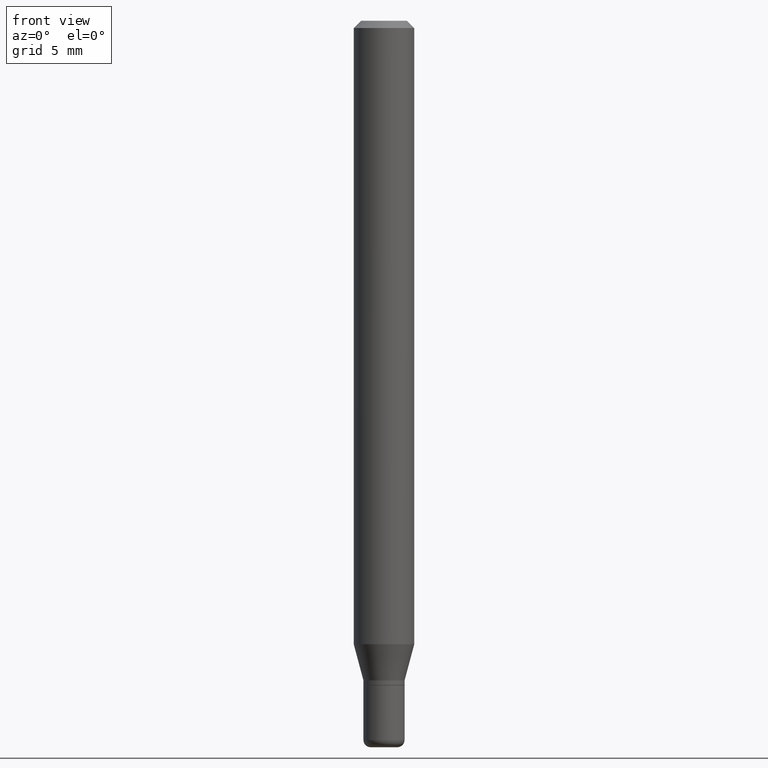
[diagram: clean part render]
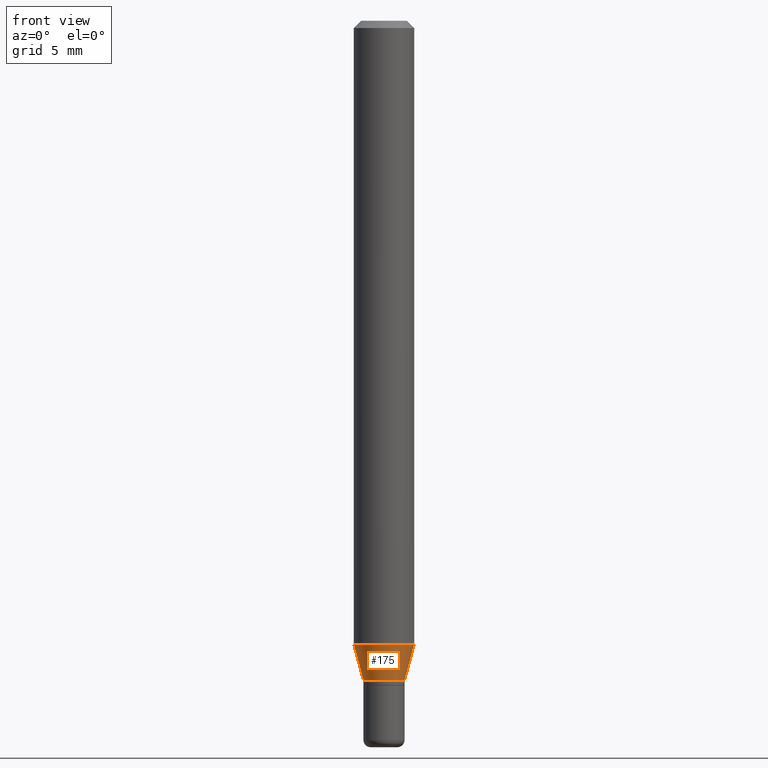
[diagram: same view with one face highlighted and labeled with its STEP entity id]
A machine part, front view. The second image highlights one B-rep face of the part: STEP entity #175.
In plain terms, the highlighted conical surface has half-angle 15 deg.
Its self-contained STEP definition (entity closure, byte-faithful):
#19 = LINE ( 'NONE', #178, #339 ) ;
#22 = DIRECTION ( 'NONE',  ( 1.000000000000000000, -6.982962677686273810E-15, 0.000000000000000000 ) ) ;
#52 = ORIENTED_EDGE ( 'NONE', *, *, #264, .T. ) ;
#56 = CIRCLE ( 'NONE', #147, 0.06250000000000000000 ) ;
#59 = CARTESIAN_POINT ( 'NONE',  ( 0.04250000000000000999, -5.052173497306030910E-15, -1.362000000000000099 ) ) ;
#97 = CARTESIAN_POINT ( 'NONE',  ( 3.330728514024156148E-29, -4.755397583504364259E-15, -1.362000000000000099 ) ) ;
#109 = DIRECTION ( 'NONE',  ( 1.000000000000000000, -6.982962677686273810E-15, 0.000000000000000000 ) ) ;
#111 = AXIS2_PLACEMENT_3D ( 'NONE', #188, #115, #109 ) ;
#115 = DIRECTION ( 'NONE',  ( -2.445468806185136597E-29, 3.491481338843145583E-15, 1.000000000000000000 ) ) ;
#124 = EDGE_CURVE ( 'NONE', #127, #259, #56, .T. ) ;
#127 = VERTEX_POINT ( 'NONE', #149 ) ;
#137 = CARTESIAN_POINT ( 'NONE',  ( 3.148196237364001258E-29, -4.494789868499539856E-15, -1.287358983848622573 ) ) ;
#145 = FACE_OUTER_BOUND ( 'NONE', #357, .T. ) ;
#147 = AXIS2_PLACEMENT_3D ( 'NONE', #137, #505, #464 ) ;
#149 = CARTESIAN_POINT ( 'NONE',  ( -0.06250000000000000000, -4.050700658649477240E-15, -1.287358983848622573 ) ) ;
#151 = VERTEX_POINT ( 'NONE', #59 ) ;
#167 = EDGE_CURVE ( 'NONE', #322, #127, #19, .T. ) ;
#175 = ADVANCED_FACE ( 'NONE', ( #145 ), #407, .T. ) ;
#178 = CARTESIAN_POINT ( 'NONE',  ( -0.04250000000000000999, -4.453416920806321806E-15, -1.362000000000000099 ) ) ;
#188 = CARTESIAN_POINT ( 'NONE',  ( 3.330728514024156148E-29, -4.755397583504364259E-15, -1.362000000000000099 ) ) ;
#192 = CARTESIAN_POINT ( 'NONE',  ( 0.06250000000000000000, -4.931225035854931526E-15, -1.287358983848622573 ) ) ;
#224 = DIRECTION ( 'NONE',  ( -2.445468806185136597E-29, 3.491481338843145583E-15, 1.000000000000000000 ) ) ;
#226 = EDGE_CURVE ( 'NONE', #322, #151, #332, .T. ) ;
#237 = ORIENTED_EDGE ( 'NONE', *, *, #124, .F. ) ;
#259 = VERTEX_POINT ( 'NONE', #192 ) ;
#264 = EDGE_CURVE ( 'NONE', #151, #259, #302, .T. ) ;
#302 = LINE ( 'NONE', #466, #416 ) ;
#308 = ORIENTED_EDGE ( 'NONE', *, *, #226, .T. ) ;
#322 = VERTEX_POINT ( 'NONE', #472 ) ;
#332 = CIRCLE ( 'NONE', #111, 0.04250000000000000999 ) ;
#339 = VECTOR ( 'NONE', #499, 39.37007874015748854 ) ;
#357 = EDGE_LOOP ( 'NONE', ( #397, #308, #52, #237 ) ) ;
#397 = ORIENTED_EDGE ( 'NONE', *, *, #167, .F. ) ;
#399 = AXIS2_PLACEMENT_3D ( 'NONE', #97, #224, #22 ) ;
#407 = CONICAL_SURFACE ( 'NONE', #399, 0.04250000000000000999, 0.2617993877991491303 ) ;
#416 = VECTOR ( 'NONE', #509, 39.37007874015748854 ) ;
#464 = DIRECTION ( 'NONE',  ( 1.000000000000000000, -6.982962677686262766E-15, 0.000000000000000000 ) ) ;
#466 = CARTESIAN_POINT ( 'NONE',  ( 0.04250000000000000999, -5.052173497306030910E-15, -1.362000000000000099 ) ) ;
#472 = CARTESIAN_POINT ( 'NONE',  ( -0.04250000000000000999, -4.252058789727899129E-15, -1.362000000000000099 ) ) ;
#499 = DIRECTION ( 'NONE',  ( -0.2588190451025204619, 5.211531920934543942E-15, 0.9659258262890684232 ) ) ;
#505 = DIRECTION ( 'NONE',  ( -2.445468806185136597E-29, 3.491481338843145583E-15, 1.000000000000000000 ) ) ;
#509 = DIRECTION ( 'NONE',  ( 0.2588190451025204619, 1.565188264969629067E-15, 0.9659258262890684232 ) ) ;